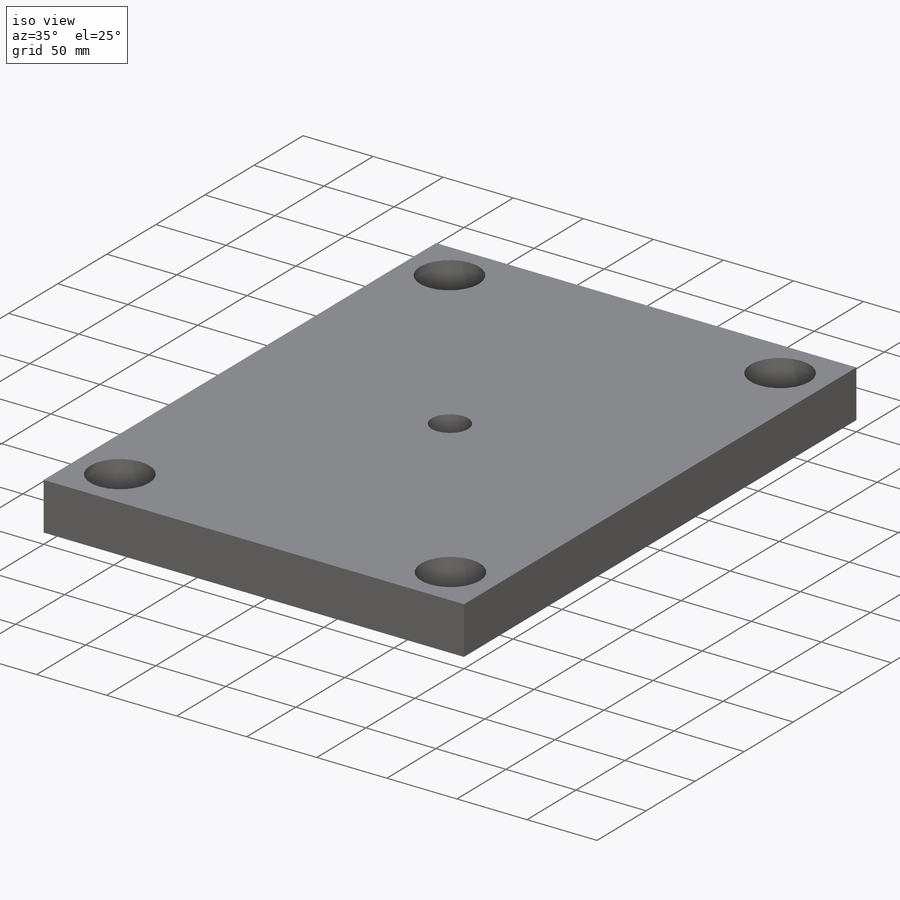
[diagram: iso view]
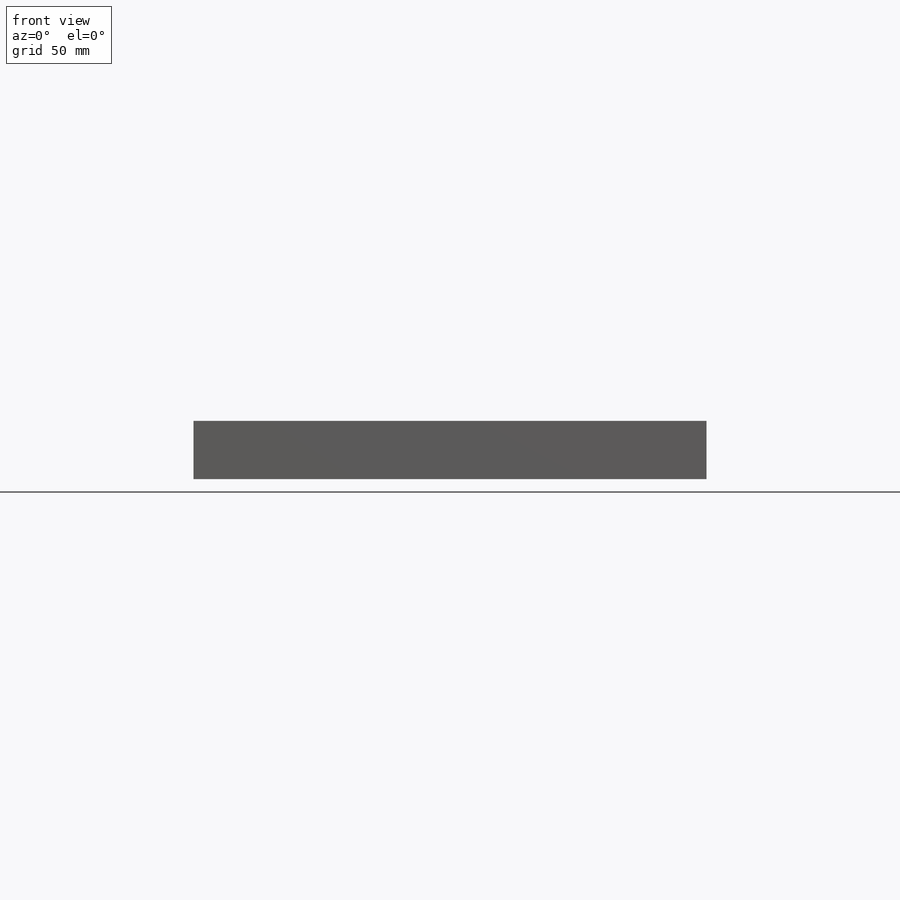
[diagram: front view]
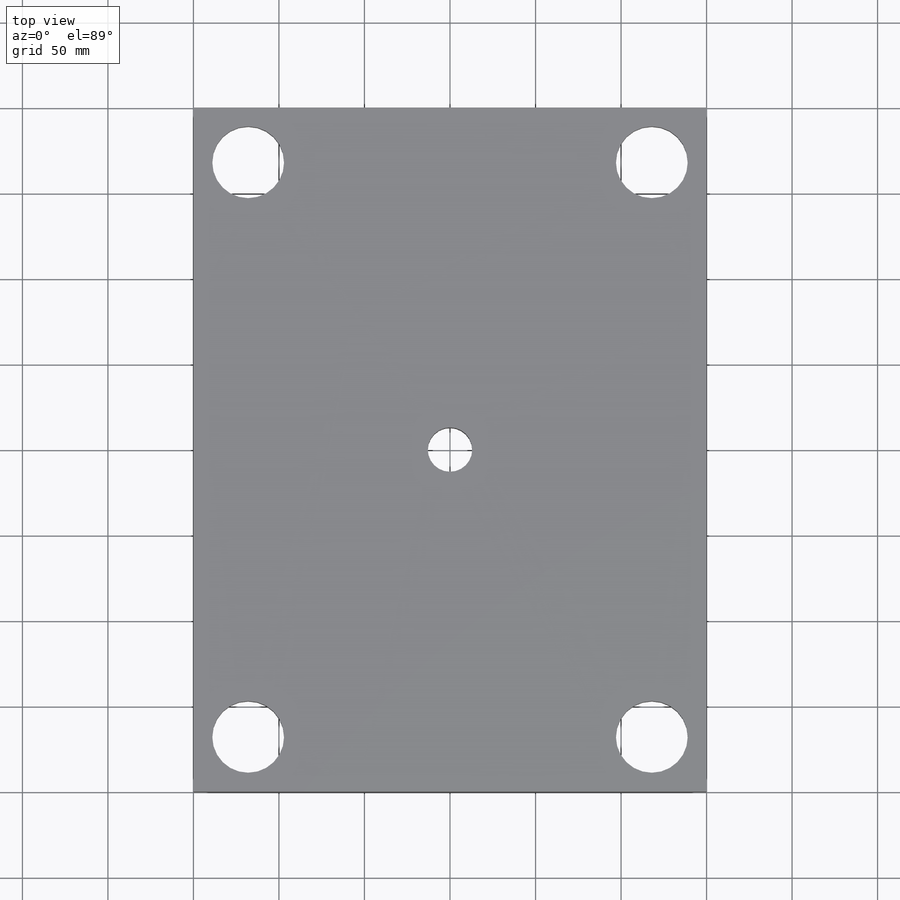
[diagram: top view]
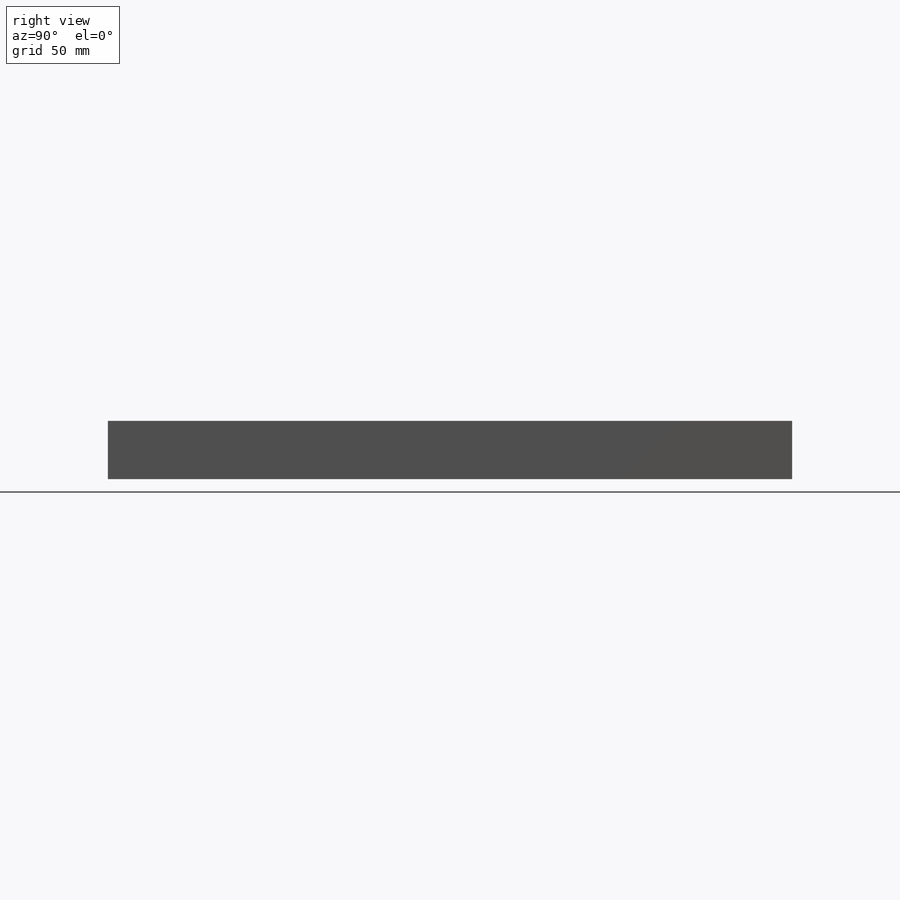
[diagram: right view]
SOLIDWORKS PART (.sldprt)
format: sldprt  version: not decoded by parser v0  size: 197,120 bytes
history: native  units: mm
features: sketch x5, thread x4, plane x3, hole x2, material x1, extrude x1 (+14 scaffold rows collapsed)
feature tree (30):
  scaffold x14  (default folders/planes/origin — collapsed)
  material  "AISI 1020"
  plane  "Plano frontal"
  plane  "Plano superior"
  plane  "Plano direito"
  sketch  "Esboço1"  dims[D3=~11.094486mm D1=300.0mm D2=400.0mm]
  extrude  "Extrusão1"  Depth=34mm
  hole  "Furo roscado de M161"  Diameter=14mm Depth=28mm
  sketch  "Esboço3"  dims[D1=118.0mm D2=119.0mm D3=236.0mm D4=238.0mm]
  sketch  "Esboço2"  dims[hole-wizard template sketch: 46 standard entries collapsed; hole parameters kept: c15.Tap Drill Dia.=14.0mm c15.Tap Drill Depth=28.0mm c15.D3=~14.816244mm c15.Drill Angle=118.0deg]
  thread  "Rosca de furo1"  Diameter=18mm  [1 undecoded]
  thread  "Rosca de furo2"  Diameter=18mm  [1 undecoded]
  thread  "Rosca de furo3"  Diameter=18mm  [1 undecoded]
  thread  "Rosca de furo4"  Diameter=18mm  [1 undecoded]
  hole  "Furo1"  Diameter=42mm Depth=34mm
  sketch  "Esboço5"  dims[D1=236.0mm D2=118.0mm D3=336.0mm D4=168.0mm]
  sketch  "Esboço4"  dims[Diameter=42.0mm Depth=34.0mm C-Bore Diameter=48.0mm C-Bore Depth=8.0mm]
decode coverage: 12 of 12 modeling features carry decoded parameters
note: ~ marks probable driven/reference dimensions
note: 4 parameter values undecoded
note: suppression state not decoded; provenance and decode notes live in map.json
